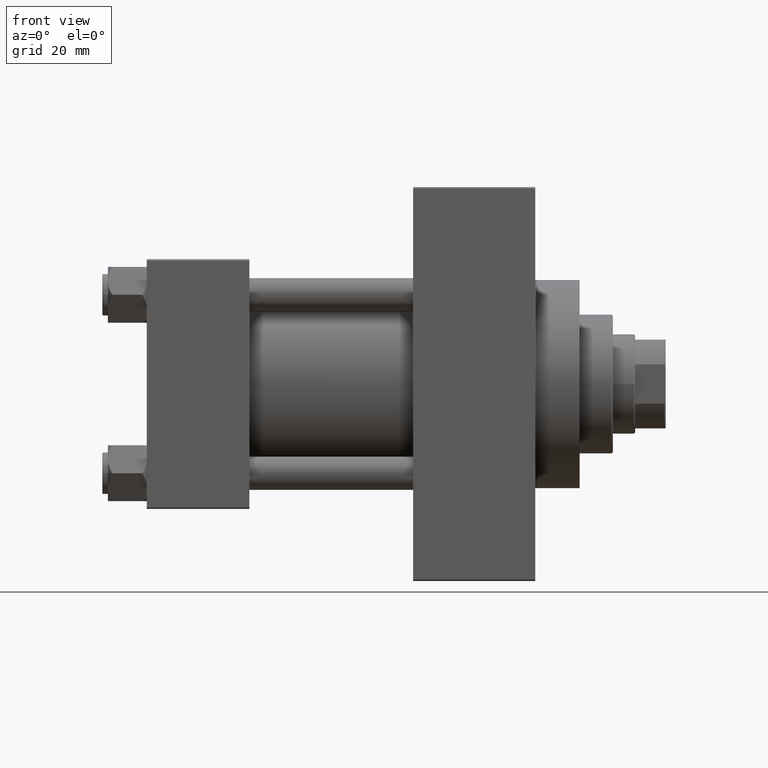
[diagram: clean part render]
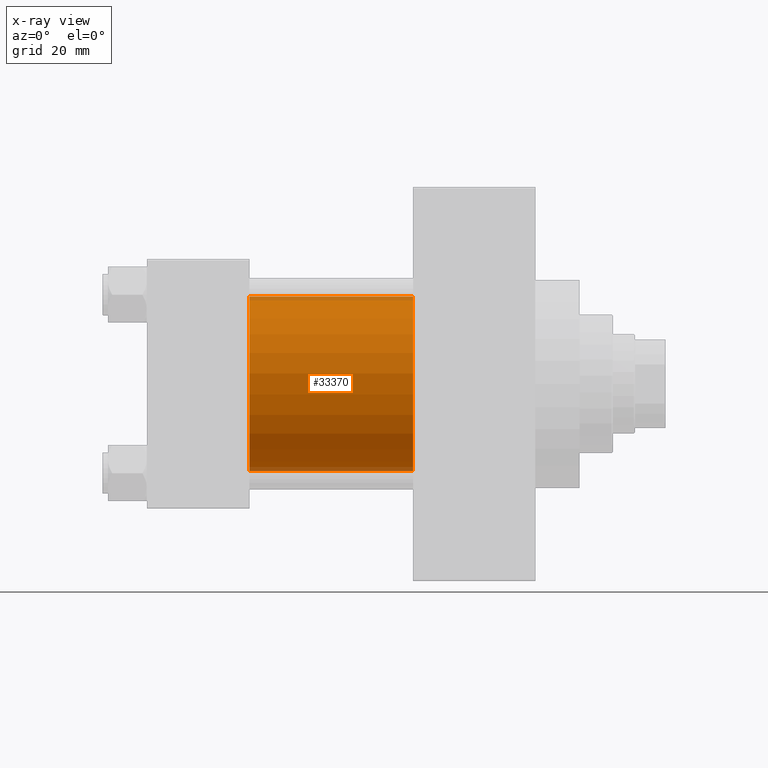
[diagram: x-ray — body ghosted, one internal face saturated and labeled with its STEP entity id]
A machine part, front view, then the same camera in x-ray: the body is ghosted and one INTERNAL B-rep face — a face not visible from any outside direction — is saturated and labeled: STEP entity #33370.
In plain terms, the highlighted cylindrical surface (partial cylindrical patch) has radius 31.5 mm, axis along (-1, -0, -0).
Its self-contained STEP definition (entity closure, byte-faithful):
#353 = AXIS2_PLACEMENT_3D ( 'NONE', #20483, #16664, #45564 ) ;
#400 = EDGE_LOOP ( 'NONE', ( #32606, #37479, #25993, #2571 ) ) ;
#715 = DIRECTION ( 'NONE',  ( -1.000000000000000000, -0.000000000000000000, -0.000000000000000000 ) ) ;
#2571 = ORIENTED_EDGE ( 'NONE', *, *, #42943, .F. ) ;
#2734 = CARTESIAN_POINT ( 'NONE',  ( 96.00000000000000000, -2.602085213965210642E-15, 0.000000000000000000 ) ) ;
#2801 = EDGE_CURVE ( 'NONE', #43788, #21393, #11934, .T. ) ;
#4519 = CARTESIAN_POINT ( 'NONE',  ( 96.00000000000000000, -2.602085213965210642E-15, 0.000000000000000000 ) ) ;
#6066 = DIRECTION ( 'NONE',  ( 0.000000000000000000, 0.000000000000000000, 1.000000000000000000 ) ) ;
#6299 = DIRECTION ( 'NONE',  ( -1.000000000000000000, -0.000000000000000000, -0.000000000000000000 ) ) ;
#6829 = CARTESIAN_POINT ( 'NONE',  ( 37.00000000000000000, 1.255552203348951850E-15, -31.50000000000000000 ) ) ;
#11934 = LINE ( 'NONE', #30074, #28470 ) ;
#16348 = FACE_OUTER_BOUND ( 'NONE', #400, .T. ) ;
#16582 = CYLINDRICAL_SURFACE ( 'NONE', #18336, 31.50000000000000000 ) ;
#16664 = DIRECTION ( 'NONE',  ( 1.000000000000000000, 0.000000000000000000, 0.000000000000000000 ) ) ;
#16857 = EDGE_CURVE ( 'NONE', #27957, #43788, #19186, .T. ) ;
#18336 = AXIS2_PLACEMENT_3D ( 'NONE', #2734, #6299, #6066 ) ;
#19186 = CIRCLE ( 'NONE', #41276, 31.50000000000000000 ) ;
#20483 = CARTESIAN_POINT ( 'NONE',  ( 37.00000000000000000, -2.602085213965210642E-15, 0.000000000000000000 ) ) ;
#21393 = VERTEX_POINT ( 'NONE', #6829 ) ;
#22459 = CIRCLE ( 'NONE', #353, 31.50000000000000000 ) ;
#25993 = ORIENTED_EDGE ( 'NONE', *, *, #46596, .F. ) ;
#27957 = VERTEX_POINT ( 'NONE', #42619 ) ;
#28470 = VECTOR ( 'NONE', #715, 1000.000000000000000 ) ;
#29362 = DIRECTION ( 'NONE',  ( 1.000000000000000000, 0.000000000000000000, 0.000000000000000000 ) ) ;
#29888 = CARTESIAN_POINT ( 'NONE',  ( 96.00000000000000000, 1.255552203348951850E-15, -31.50000000000000000 ) ) ;
#30074 = CARTESIAN_POINT ( 'NONE',  ( 96.00000000000000000, 1.255552203348951850E-15, -31.50000000000000000 ) ) ;
#32606 = ORIENTED_EDGE ( 'NONE', *, *, #16857, .T. ) ;
#33370 = ADVANCED_FACE ( 'NONE', ( #16348 ), #16582, .F. ) ;
#34184 = DIRECTION ( 'NONE',  ( -1.000000000000000000, -0.000000000000000000, -0.000000000000000000 ) ) ;
#34668 = LINE ( 'NONE', #38004, #43055 ) ;
#35890 = VERTEX_POINT ( 'NONE', #43302 ) ;
#37479 = ORIENTED_EDGE ( 'NONE', *, *, #2801, .T. ) ;
#38004 = CARTESIAN_POINT ( 'NONE',  ( 96.00000000000000000, -2.602085213965210642E-15, 31.50000000000000000 ) ) ;
#41276 = AXIS2_PLACEMENT_3D ( 'NONE', #4519, #29362, #43931 ) ;
#42619 = CARTESIAN_POINT ( 'NONE',  ( 96.00000000000000000, -2.602085213965210642E-15, 31.50000000000000000 ) ) ;
#42943 = EDGE_CURVE ( 'NONE', #27957, #35890, #34668, .T. ) ;
#43055 = VECTOR ( 'NONE', #34184, 1000.000000000000000 ) ;
#43302 = CARTESIAN_POINT ( 'NONE',  ( 37.00000000000000000, -2.602085213965210642E-15, 31.50000000000000000 ) ) ;
#43788 = VERTEX_POINT ( 'NONE', #29888 ) ;
#43931 = DIRECTION ( 'NONE',  ( 0.000000000000000000, 0.000000000000000000, -1.000000000000000000 ) ) ;
#45564 = DIRECTION ( 'NONE',  ( 0.000000000000000000, 0.000000000000000000, -1.000000000000000000 ) ) ;
#46596 = EDGE_CURVE ( 'NONE', #35890, #21393, #22459, .T. ) ;